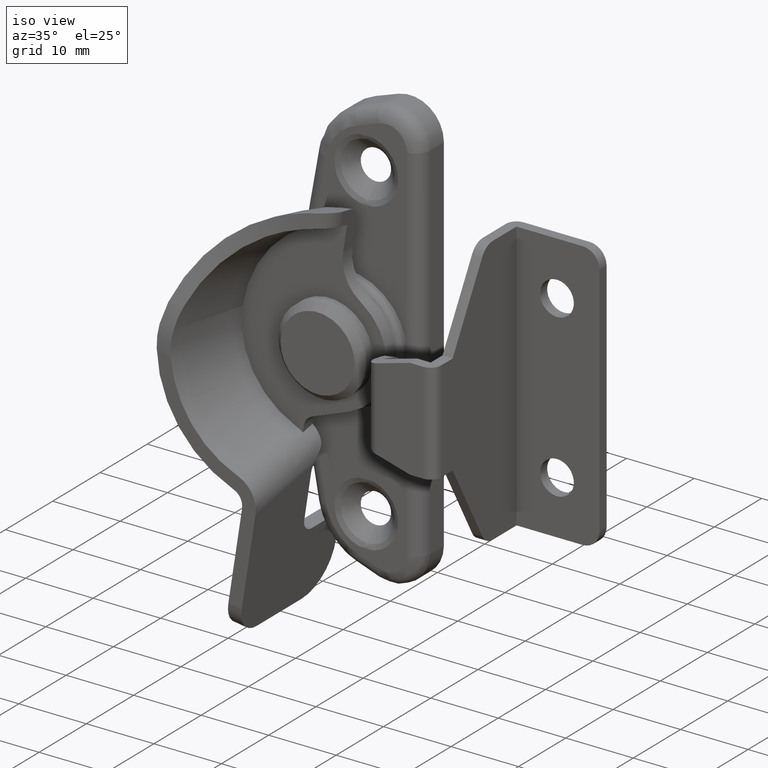
[diagram: clean part render]
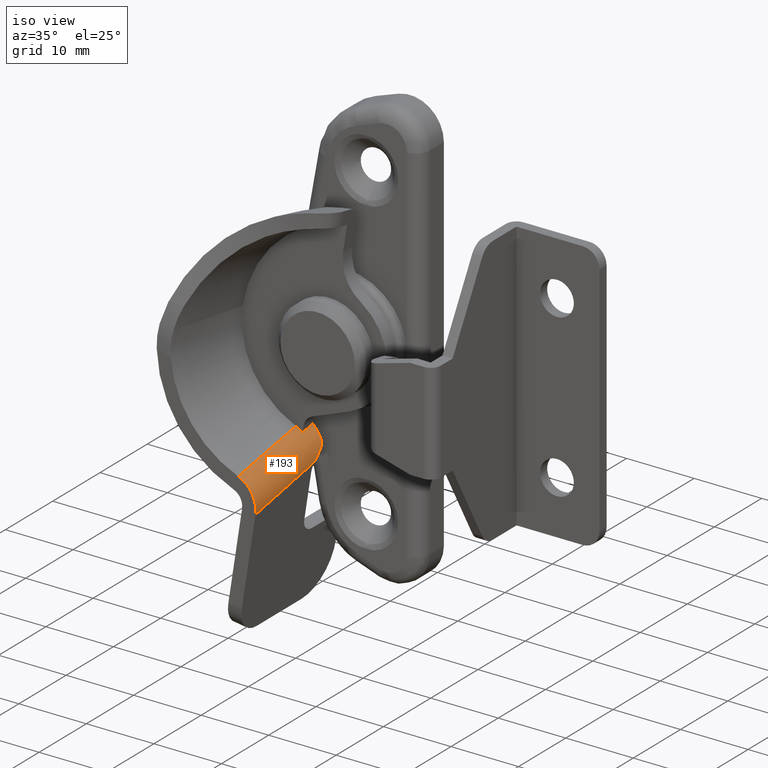
[diagram: same view with one face highlighted and labeled with its STEP entity id]
A machine part, iso view. The second image highlights one B-rep face of the part: STEP entity #193.
In plain terms, the highlighted face is a freeform B-spline surface patch.
Its self-contained STEP definition (entity closure, byte-faithful):
#193=ADVANCED_FACE('',(#473),#472,.T.);
#472=( BOUNDED_SURFACE() B_SPLINE_SURFACE( 3,2,((#2696,#2697,#2698),(#2699,#2700,#2701),(#2702,#2703,#2704),(#2705,#2706,#2707)), .UNSPECIFIED.,.F.,.F.,.F.) B_SPLINE_SURFACE_WITH_KNOTS((4,4),(3,3),(2.18522390722E-02,3.66351371342E-02),(0.00000000000E+00,1.00000000000E+00), .UNSPECIFIED. ) GEOMETRIC_REPRESENTATION_ITEM() RATIONAL_B_SPLINE_SURFACE(((1.00000000000E+00,7.74371180348E-01,1.00000000000E+00),(1.00000000000E+00,7.77805816624E-01,1.00000000000E+00),(1.00000000000E+00,7.81745480770E-01,1.00000000000E+00),(1.00000000000E+00,7.86525626340E-01,1.00000000000E+00))) REPRESENTATION_ITEM('') SURFACE() );
#473=FACE_OUTER_BOUND('',#2708,.T.);
#2696=CARTESIAN_POINT('',(-2.49167282029E+01,-1.15855614263E+01,-1.89769414636E+01));
#2697=CARTESIAN_POINT('',(-2.44320225771E+01,-1.22940726829E+01,-1.58233290430E+01));
#2698=CARTESIAN_POINT('',(-2.75010413795E+01,-1.24352800036E+01,-1.47082581364E+01));
#2699=CARTESIAN_POINT('',(-2.47544522168E+01,-6.77510578221E+00,-1.79211345203E+01));
#2700=CARTESIAN_POINT('',(-2.42758561930E+01,-7.49861242157E+00,-1.48072726525E+01));
#2701=CARTESIAN_POINT('',(-2.72980958571E+01,-7.62483110241E+00,-1.36676635875E+01));
#2702=CARTESIAN_POINT('',(-2.45916606743E+01,-1.96538775672E+00,-1.68619732415E+01));
#2703=CARTESIAN_POINT('',(-2.41195322432E+01,-2.68998368206E+00,-1.37901911018E+01));
#2704=CARTESIAN_POINT('',(-2.70884668851E+01,-2.81511329456E+00,-1.26266921270E+01));
#2705=CARTESIAN_POINT('',(-2.44279669890E+01,2.84297842236E+00,-1.57969424030E+01));
#2706=CARTESIAN_POINT('',(-2.39623977062E+01,2.15619569647E+00,-1.27678356737E+01));
#2707=CARTESIAN_POINT('',(-2.68675518695E+01,1.99325984503E+00,-1.15857002996E+01));
#2708=EDGE_LOOP('',(#4516,#4517,#4518,#4519,#4520,#4521,#4522,#4523));
#4516=ORIENTED_EDGE('',*,*,#5599,.T.);
#4517=ORIENTED_EDGE('',*,*,#5600,.T.);
#4518=ORIENTED_EDGE('',*,*,#5601,.T.);
#4519=ORIENTED_EDGE('',*,*,#5602,.T.);
#4520=ORIENTED_EDGE('',*,*,#5603,.T.);
#4521=ORIENTED_EDGE('',*,*,#5604,.T.);
#4522=ORIENTED_EDGE('',*,*,#5587,.F.);
#4523=ORIENTED_EDGE('',*,*,#5598,.F.);
#5587=EDGE_CURVE('',#6237,#6238,#6239,.T.);
#5598=EDGE_CURVE('',#6306,#6237,#6313,.T.);
#5599=EDGE_CURVE('',#6306,#6319,#6320,.T.);
#5600=EDGE_CURVE('',#6319,#6326,#6327,.T.);
#5601=EDGE_CURVE('',#6326,#6333,#6334,.T.);
#5602=EDGE_CURVE('',#6333,#6340,#6341,.T.);
#5603=EDGE_CURVE('',#6340,#6347,#6348,.T.);
#5604=EDGE_CURVE('',#6347,#6238,#6354,.T.);
#6237=VERTEX_POINT('',#9866);
#6238=VERTEX_POINT('',#9867);
#6239=(BOUNDED_CURVE() B_SPLINE_CURVE(3,(#9868,#9869,#9870,#9871),.UNSPECIFIED.,.F.,.F.) B_SPLINE_CURVE_WITH_KNOTS((4,4),(7.19517368246E-04,2.37877741533E-03),.UNSPECIFIED.) CURVE() GEOMETRIC_REPRESENTATION_ITEM() RATIONAL_B_SPLINE_CURVE((1.00000000000E+00,1.00000000000E+00,1.00000000000E+00,1.00000000000E+00)) REPRESENTATION_ITEM('') );
#6306=VERTEX_POINT('',#9932);
#6313=(BOUNDED_CURVE() B_SPLINE_CURVE(3,(#9937,#9938,#9939,#9940,#9941,#9942),.UNSPECIFIED.,.F.,.F.) B_SPLINE_CURVE_WITH_KNOTS((4,2,4),(0.00000000000E+00,7.32041906757E-04,1.46408381351E-03),.UNSPECIFIED.) CURVE() GEOMETRIC_REPRESENTATION_ITEM() RATIONAL_B_SPLINE_CURVE((1.00000000000E+00,1.00000000000E+00,1.00000000000E+00,1.00000000000E+00,1.00000000000E+00,1.00000000000E+00)) REPRESENTATION_ITEM('') );
#6319=VERTEX_POINT('',#9943);
#6320=(BOUNDED_CURVE() B_SPLINE_CURVE(3,(#9944,#9945,#9946,#9947,#9948,#9949,#9950,#9951),.UNSPECIFIED.,.F.,.F.) B_SPLINE_CURVE_WITH_KNOTS((4,2,2,4),(7.43523292652E-04,1.21947824087E-03,1.69543318910E-03,2.64734308554E-03),.UNSPECIFIED.) CURVE() GEOMETRIC_REPRESENTATION_ITEM() RATIONAL_B_SPLINE_CURVE((1.00000000000E+00,1.00000000000E+00,1.00000000000E+00,1.00000000000E+00,1.00000000000E+00,1.00000000000E+00,1.00000000000E+00,1.00000000000E+00)) REPRESENTATION_ITEM('') );
#6326=VERTEX_POINT('',#9952);
#6327=(BOUNDED_CURVE() B_SPLINE_CURVE(3,(#9953,#9954,#9955,#9956),.UNSPECIFIED.,.F.,.F.) B_SPLINE_CURVE_WITH_KNOTS((4,4),(0.00000000000E+00,2.04951858154E-03),.UNSPECIFIED.) CURVE() GEOMETRIC_REPRESENTATION_ITEM() RATIONAL_B_SPLINE_CURVE((1.00000000000E+00,1.00000000000E+00,1.00000000000E+00,1.00000000000E+00)) REPRESENTATION_ITEM('') );
#6333=VERTEX_POINT('',#9957);
#6334=(BOUNDED_CURVE() B_SPLINE_CURVE(3,(#9958,#9959,#9960,#9961),.UNSPECIFIED.,.F.,.F.) B_SPLINE_CURVE_WITH_KNOTS((4,4),(0.00000000000E+00,1.16116631251E-03),.UNSPECIFIED.) CURVE() GEOMETRIC_REPRESENTATION_ITEM() RATIONAL_B_SPLINE_CURVE((1.00000000000E+00,1.00000000000E+00,1.00000000000E+00,1.00000000000E+00)) REPRESENTATION_ITEM('') );
#6340=VERTEX_POINT('',#9962);
#6341=(BOUNDED_CURVE() B_SPLINE_CURVE(3,(#9963,#9964,#9965,#9966,#9967,#9968,#9969),.UNSPECIFIED.,.F.,.F.) B_SPLINE_CURVE_WITH_KNOTS((4,3,4),(3.54797417542E-19,4.96071984637E-03,1.17769613605E-02),.UNSPECIFIED.) CURVE() GEOMETRIC_REPRESENTATION_ITEM() RATIONAL_B_SPLINE_CURVE((1.00000000000E+00,1.00000000000E+00,1.00000000000E+00,1.00000000000E+00,1.00000000000E+00,1.00000000000E+00,1.00000000000E+00)) REPRESENTATION_ITEM('') );
#6347=VERTEX_POINT('',#9970);
#6348=(BOUNDED_CURVE() B_SPLINE_CURVE(3,(#9971,#9972,#9973,#9974,#9975,#9976,#9977,#9978,#9979,#9980,#9981,#9982,#9983,#9984),.UNSPECIFIED.,.F.,.F.) B_SPLINE_CURVE_WITH_KNOTS((4,2,2,2,2,2,4),(0.00000000000E+00,1.38110572008E-03,2.07165858012E-03,2.76221144015E-03,3.45276430019E-03,4.14331716023E-03,5.52442288031E-03),.UNSPECIFIED.) CURVE() GEOMETRIC_REPRESENTATION_ITEM() RATIONAL_B_SPLINE_CURVE((1.00000000000E+00,1.00000000000E+00,1.00000000000E+00,1.00000000000E+00,1.00000000000E+00,1.00000000000E+00,1.00000000000E+00,1.00000000000E+00,1.00000000000E+00,1.00000000000E+00,1.00000000000E+00,1.00000000000E+00,1.00000000000E+00,1.00000000000E+00)) REPRESENTATION_ITEM('') );
#6354=(BOUNDED_CURVE() B_SPLINE_CURVE(3,(#9985,#9986,#9987,#9988,#9989,#9990,#9991,#9992,#9993,#9994),.UNSPECIFIED.,.F.,.F.) B_SPLINE_CURVE_WITH_KNOTS((4,3,3,4),(0.00000000000E+00,7.68943887078E-03,1.17819203992E-02,1.23137550469E-02),.UNSPECIFIED.) CURVE() GEOMETRIC_REPRESENTATION_ITEM() RATIONAL_B_SPLINE_CURVE((1.00000000000E+00,1.00000000000E+00,1.00000000000E+00,1.00000000000E+00,1.00000000000E+00,1.00000000000E+00,1.00000000000E+00,1.00000000000E+00,1.00000000000E+00,1.00000000000E+00)) REPRESENTATION_ITEM('') );
#9866=CARTESIAN_POINT('',(-2.44447875843E+01,1.55719596990E+00,-1.50169186702E+01));
#9867=CARTESIAN_POINT('',(-2.45070093359E+01,5.19013594233E-01,-1.63112110926E+01));
#9868=CARTESIAN_POINT('',(-2.44447875843E+01,1.55719596990E+00,-1.50169186702E+01));
#9869=CARTESIAN_POINT('',(-2.44196719221E+01,1.21485514543E+00,-1.54513584665E+01));
#9870=CARTESIAN_POINT('',(-2.44411293477E+01,8.68532157028E-01,-1.58825799028E+01));
#9871=CARTESIAN_POINT('',(-2.45070093359E+01,5.19013594233E-01,-1.63112110926E+01));
#9932=CARTESIAN_POINT('',(-2.47524483367E+01,2.00000000000E+00,-1.36855357395E+01));
#9937=CARTESIAN_POINT('',(-2.47524483367E+01,2.00000000000E+00,-1.36855357395E+01));
#9938=CARTESIAN_POINT('',(-2.46538044050E+01,2.00000000000E+00,-1.39121394230E+01));
#9939=CARTESIAN_POINT('',(-2.45810068282E+01,1.96902101728E+00,-1.41454669164E+01));
#9940=CARTESIAN_POINT('',(-2.44813434350E+01,1.82278147344E+00,-1.46050782075E+01));
#9941=CARTESIAN_POINT('',(-2.44560176046E+01,1.71026756309E+00,-1.48226666645E+01));
#9942=CARTESIAN_POINT('',(-2.44447875843E+01,1.55719596990E+00,-1.50169186702E+01));
#9943=CARTESIAN_POINT('',(-2.58941528197E+01,2.00000000000E+00,-1.21710123606E+01));
#9944=CARTESIAN_POINT('',(-2.47524483367E+01,2.00000000000E+00,-1.36855357395E+01));
#9945=CARTESIAN_POINT('',(-2.48157777723E+01,2.00000000000E+00,-1.35400561023E+01));
#9946=CARTESIAN_POINT('',(-2.48875459041E+01,2.00000000000E+00,-1.33981151021E+01));
#9947=CARTESIAN_POINT('',(-2.50485315837E+01,2.00000000000E+00,-1.31215502456E+01));
#9948=CARTESIAN_POINT('',(-2.51378587786E+01,2.00000000000E+00,-1.29870579300E+01));
#9949=CARTESIAN_POINT('',(-2.54255219142E+01,2.00000000000E+00,-1.26050796780E+01));
#9950=CARTESIAN_POINT('',(-2.56452199174E+01,2.00000000000E+00,-1.23751196844E+01));
#9951=CARTESIAN_POINT('',(-2.58941528197E+01,2.00000000000E+00,-1.21710123606E+01));
#9952=CARTESIAN_POINT('',(-2.59621804700E+01,0.00000000000E+00,-1.26136167606E+01));
#9953=CARTESIAN_POINT('',(-2.58941528197E+01,2.00000000000E+00,-1.21710123606E+01));
#9954=CARTESIAN_POINT('',(-2.59168460255E+01,1.33335887425E+00,-1.23186598638E+01));
#9955=CARTESIAN_POINT('',(-2.59395214387E+01,6.66691494667E-01,-1.24661916047E+01));
#9956=CARTESIAN_POINT('',(-2.59621804700E+01,-1.23056839217E-15,-1.26136167606E+01));
#9957=CARTESIAN_POINT('',(-2.69584801494E+01,0.00000000000E+00,-1.20172157594E+01));
#9958=CARTESIAN_POINT('',(-2.59621804700E+01,0.00000000000E+00,-1.26136167606E+01));
#9959=CARTESIAN_POINT('',(-2.62647751320E+01,0.00000000000E+00,-1.23655273542E+01));
#9960=CARTESIAN_POINT('',(-2.65967273328E+01,0.00000000000E+00,-1.21664802975E+01));
#9961=CARTESIAN_POINT('',(-2.69584801494E+01,0.00000000000E+00,-1.20172157594E+01));
#9962=CARTESIAN_POINT('',(-2.74614947726E+01,-1.15000000000E+01,-1.45059324019E+01));
#9963=CARTESIAN_POINT('',(-2.69584801494E+01,3.72125711238E-16,-1.20172157594E+01));
#9964=CARTESIAN_POINT('',(-2.70316198231E+01,-1.61455670548E+00,-1.23667323288E+01));
#9965=CARTESIAN_POINT('',(-2.71035511930E+01,-3.22917388138E+00,-1.27162238581E+01));
#9966=CARTESIAN_POINT('',(-2.71744721004E+01,-4.84384332534E+00,-1.30656768749E+01));
#9967=CARTESIAN_POINT('',(-2.72719204552E+01,-7.06246808253E+00,-1.35458402406E+01));
#9968=CARTESIAN_POINT('',(-2.73674642780E+01,-9.28119272681E+00,-1.40259309402E+01));
#9969=CARTESIAN_POINT('',(-2.74614947726E+01,-1.15000000000E+01,-1.45059324019E+01));
#9970=CARTESIAN_POINT('',(-2.49138418129E+01,-1.15000000000E+01,-1.89581619101E+01));
#9971=CARTESIAN_POINT('',(-2.74614947726E+01,-1.15000000000E+01,-1.45059324019E+01));
#9972=CARTESIAN_POINT('',(-2.70243440013E+01,-1.15000000000E+01,-1.46705200055E+01));
#9973=CARTESIAN_POINT('',(-2.66273771170E+01,-1.15000000000E+01,-1.49073324097E+01));
#9974=CARTESIAN_POINT('',(-2.60980501123E+01,-1.15000000000E+01,-1.53640496401E+01));
#9975=CARTESIAN_POINT('',(-2.59372507052E+01,-1.15000000000E+01,-1.55295933109E+01));
#9976=CARTESIAN_POINT('',(-2.56454978401E+01,-1.15000000000E+01,-1.58860651738E+01));
#9977=CARTESIAN_POINT('',(-2.55138182287E+01,-1.15000000000E+01,-1.60783303044E+01));
#9978=CARTESIAN_POINT('',(-2.52849084489E+01,-1.15000000000E+01,-1.64832516897E+01));
#9979=CARTESIAN_POINT('',(-2.51890035202E+01,-1.15000000000E+01,-1.66929945698E+01));
#9980=CARTESIAN_POINT('',(-2.50328483366E+01,-1.15000000000E+01,-1.71264773414E+01));
#9981=CARTESIAN_POINT('',(-2.49723070148E+01,-1.15000000000E+01,-1.73520564825E+01));
#9982=CARTESIAN_POINT('',(-2.48489072197E+01,-1.15000000000E+01,-1.80375917830E+01));
#9983=CARTESIAN_POINT('',(-2.48429286939E+01,-1.15000000000E+01,-1.84967839500E+01));
#9984=CARTESIAN_POINT('',(-2.49138418129E+01,-1.15000000000E+01,-1.89581619101E+01));
#9985=CARTESIAN_POINT('',(-2.49138418129E+01,-1.15000000000E+01,-1.89581619101E+01));
#9986=CARTESIAN_POINT('',(-2.48294293539E+01,-8.99780814520E+00,-1.84089539679E+01));
#9987=CARTESIAN_POINT('',(-2.47448725254E+01,-6.49582700758E+00,-1.78588067231E+01));
#9988=CARTESIAN_POINT('',(-2.46601258335E+01,-3.99412474802E+00,-1.73074241808E+01));
#9989=CARTESIAN_POINT('',(-2.46150218538E+01,-2.66266595985E+00,-1.70139667444E+01));
#9990=CARTESIAN_POINT('',(-2.45698638330E+01,-1.33128642945E+00,-1.67201577028E+01));
#9991=CARTESIAN_POINT('',(-2.45246426143E+01,3.21554530581E-08,-1.64259374808E+01));
#9992=CARTESIAN_POINT('',(-2.45187659325E+01,1.73006139115E-01,-1.63877023626E+01));
#9993=CARTESIAN_POINT('',(-2.45128881806E+01,3.46010671230E-01,-1.63494602823E+01));
#9994=CARTESIAN_POINT('',(-2.45070093359E+01,5.19013594233E-01,-1.63112110926E+01));